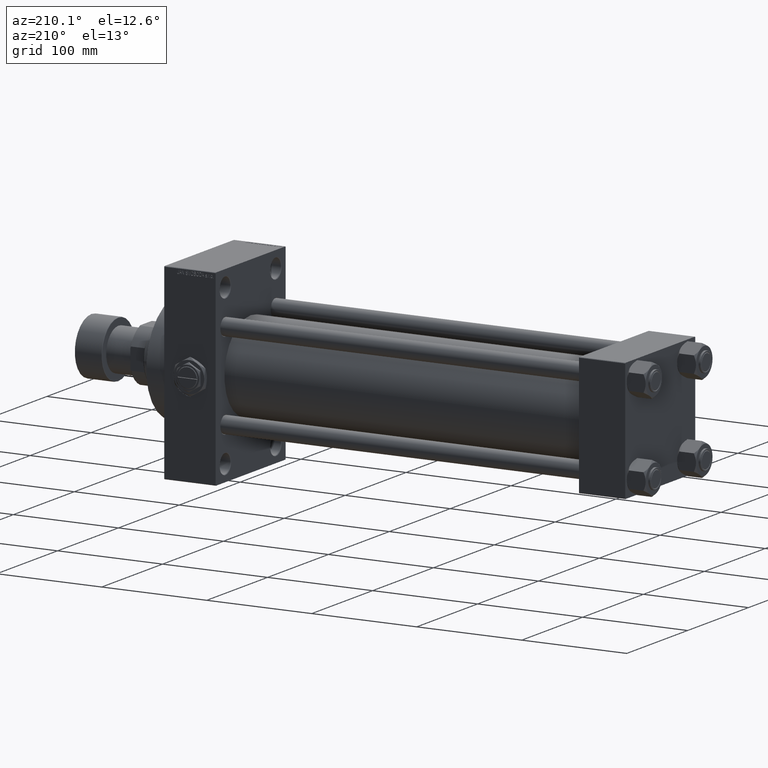
[diagram: clean part render]
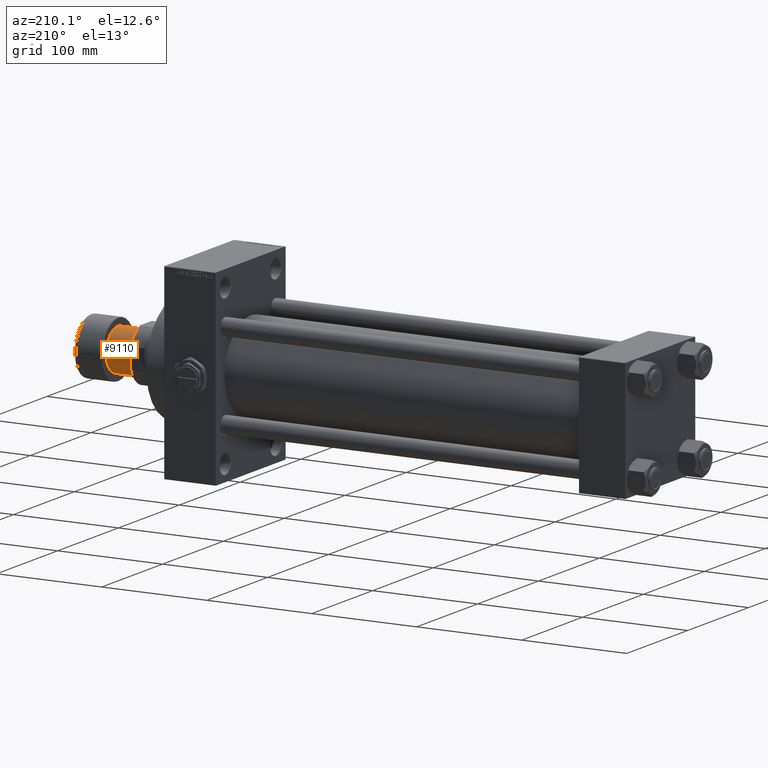
[diagram: same view with one face highlighted and labeled with its STEP entity id]
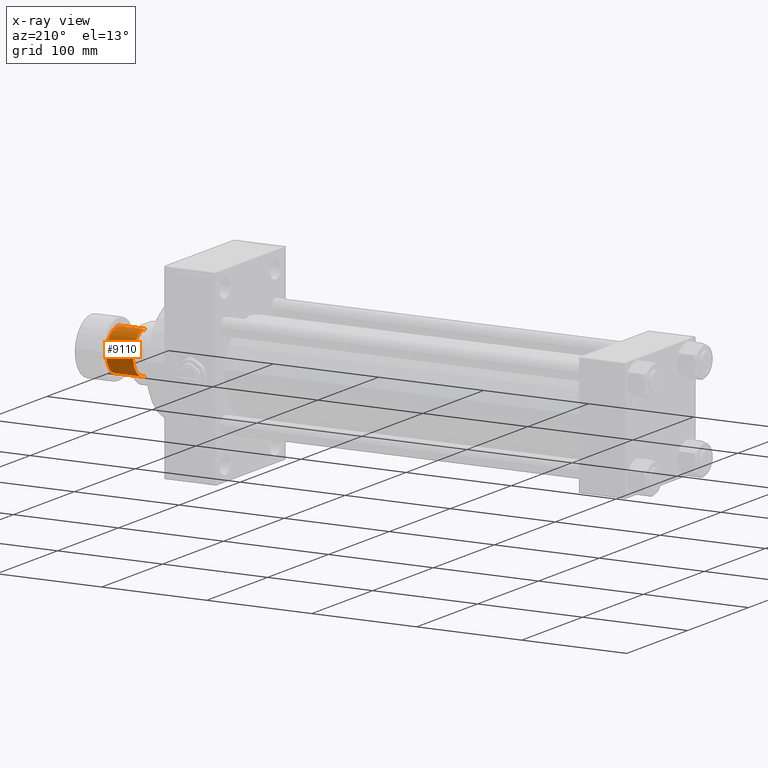
[diagram: x-ray of the same camera — body ghosted, the highlighted face saturated]
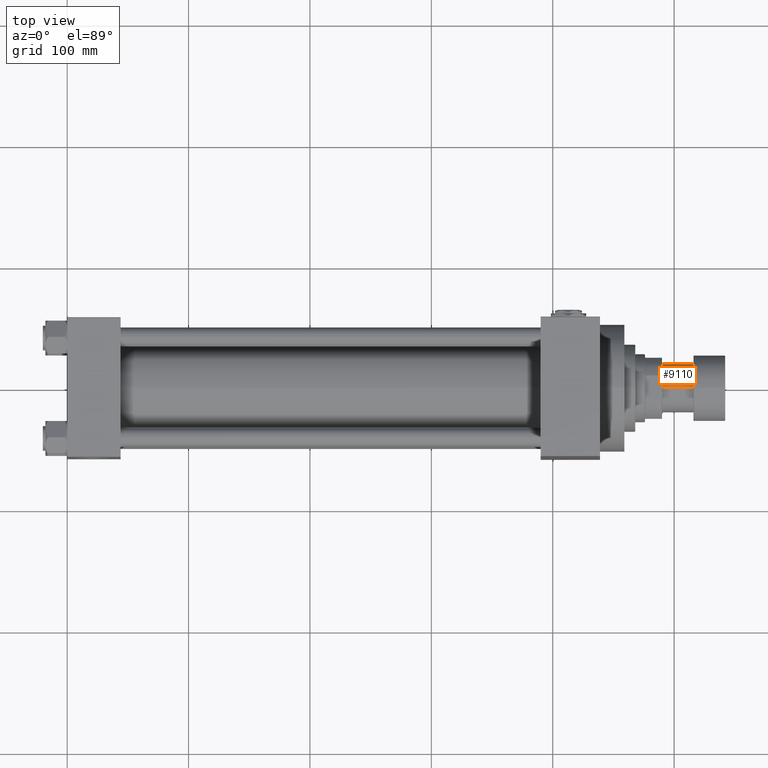
[diagram: same view with one face highlighted and labeled with its STEP entity id]
A machine part, auxiliary view. The second image highlights one B-rep face of the part: STEP entity #9110.
The next image is the same camera in x-ray: the body ghosted, the highlighted face saturated — about 0% of this face is hidden behind the body in this view.
A second angle (top view) of the same face is appended — the face is thin or edge-on in the first view.
In plain terms, the highlighted cylindrical surface (edge-blend (fillet) strip) has radius 20 mm, axis along (1, 0, 0).
Its self-contained STEP definition (entity closure, byte-faithful):
#298 = DIRECTION ( 'NONE',  ( 0.000000000000000000, 0.000000000000000000, -1.000000000000000000 ) ) ;
#364 = VERTEX_POINT ( 'NONE', #16675 ) ;
#2773 = EDGE_CURVE ( 'NONE', #12221, #27551, #37346, .T. ) ;
#3129 = CARTESIAN_POINT ( 'NONE',  ( -20.00000000000000000, 2.449293598294706513E-15, -26.00000000000000000 ) ) ;
#4830 = CIRCLE ( 'NONE', #44062, 20.00000000000000000 ) ;
#4908 = EDGE_LOOP ( 'NONE', ( #36021, #21991, #18965, #40200 ) ) ;
#5253 = LINE ( 'NONE', #27107, #8745 ) ;
#5808 = VECTOR ( 'NONE', #35659, 1000.000000000000000 ) ;
#8536 = DIRECTION ( 'NONE',  ( -0.000000000000000000, -0.000000000000000000, 1.000000000000000000 ) ) ;
#8745 = VECTOR ( 'NONE', #8536, 1000.000000000000000 ) ;
#9110 = ADVANCED_FACE ( 'NONE', ( #45916 ), #26359, .T. ) ;
#9250 = EDGE_CURVE ( 'NONE', #19768, #27551, #5253, .T. ) ;
#9310 = AXIS2_PLACEMENT_3D ( 'NONE', #30087, #10535, #9788 ) ;
#9788 = DIRECTION ( 'NONE',  ( -1.000000000000000000, 0.000000000000000000, 0.000000000000000000 ) ) ;
#10535 = DIRECTION ( 'NONE',  ( 0.000000000000000000, 0.000000000000000000, -1.000000000000000000 ) ) ;
#10855 = CARTESIAN_POINT ( 'NONE',  ( 20.00000000000000000, 0.000000000000000000, -26.00000000000000000 ) ) ;
#11810 = DIRECTION ( 'NONE',  ( -0.000000000000000000, -0.000000000000000000, 1.000000000000000000 ) ) ;
#12221 = VERTEX_POINT ( 'NONE', #3129 ) ;
#14926 = EDGE_CURVE ( 'NONE', #364, #19768, #4830, .T. ) ;
#15918 = CARTESIAN_POINT ( 'NONE',  ( 20.00000000000000000, 0.000000000000000000, -51.50000000000000000 ) ) ;
#16675 = CARTESIAN_POINT ( 'NONE',  ( -20.00000000000000000, 2.449293598294706513E-15, -51.50000000000000000 ) ) ;
#18336 = DIRECTION ( 'NONE',  ( 1.000000000000000000, 0.000000000000000000, 0.000000000000000000 ) ) ;
#18965 = ORIENTED_EDGE ( 'NONE', *, *, #2773, .T. ) ;
#19768 = VERTEX_POINT ( 'NONE', #15918 ) ;
#21991 = ORIENTED_EDGE ( 'NONE', *, *, #28607, .T. ) ;
#26359 = CYLINDRICAL_SURFACE ( 'NONE', #29559, 20.00000000000000000 ) ;
#27107 = CARTESIAN_POINT ( 'NONE',  ( 20.00000000000000000, 0.000000000000000000, -51.50000000000000000 ) ) ;
#27551 = VERTEX_POINT ( 'NONE', #10855 ) ;
#28607 = EDGE_CURVE ( 'NONE', #364, #12221, #44174, .T. ) ;
#29559 = AXIS2_PLACEMENT_3D ( 'NONE', #30853, #11810, #18336 ) ;
#30087 = CARTESIAN_POINT ( 'NONE',  ( 0.000000000000000000, 0.000000000000000000, -26.00000000000000000 ) ) ;
#30853 = CARTESIAN_POINT ( 'NONE',  ( 0.000000000000000000, 0.000000000000000000, -51.50000000000000000 ) ) ;
#31634 = CARTESIAN_POINT ( 'NONE',  ( 0.000000000000000000, 0.000000000000000000, -51.50000000000000000 ) ) ;
#35659 = DIRECTION ( 'NONE',  ( -0.000000000000000000, -0.000000000000000000, 1.000000000000000000 ) ) ;
#36021 = ORIENTED_EDGE ( 'NONE', *, *, #14926, .F. ) ;
#37346 = CIRCLE ( 'NONE', #9310, 20.00000000000000000 ) ;
#40200 = ORIENTED_EDGE ( 'NONE', *, *, #9250, .F. ) ;
#44062 = AXIS2_PLACEMENT_3D ( 'NONE', #31634, #298, #46458 ) ;
#44174 = LINE ( 'NONE', #47215, #5808 ) ;
#45916 = FACE_OUTER_BOUND ( 'NONE', #4908, .T. ) ;
#46458 = DIRECTION ( 'NONE',  ( -1.000000000000000000, 0.000000000000000000, 0.000000000000000000 ) ) ;
#47215 = CARTESIAN_POINT ( 'NONE',  ( -20.00000000000000000, 2.449293598294706513E-15, -51.50000000000000000 ) ) ;